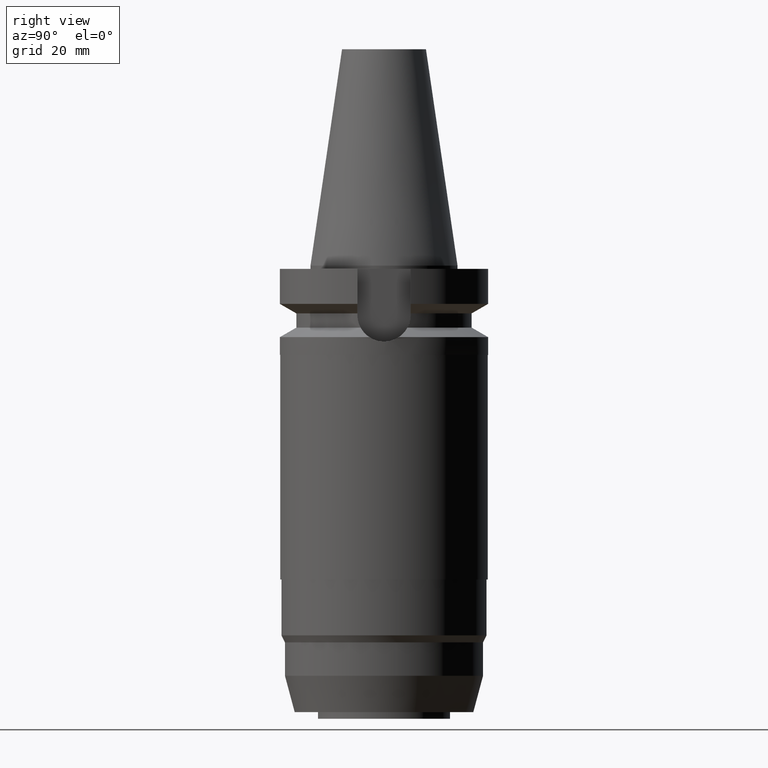
[diagram: clean part render]
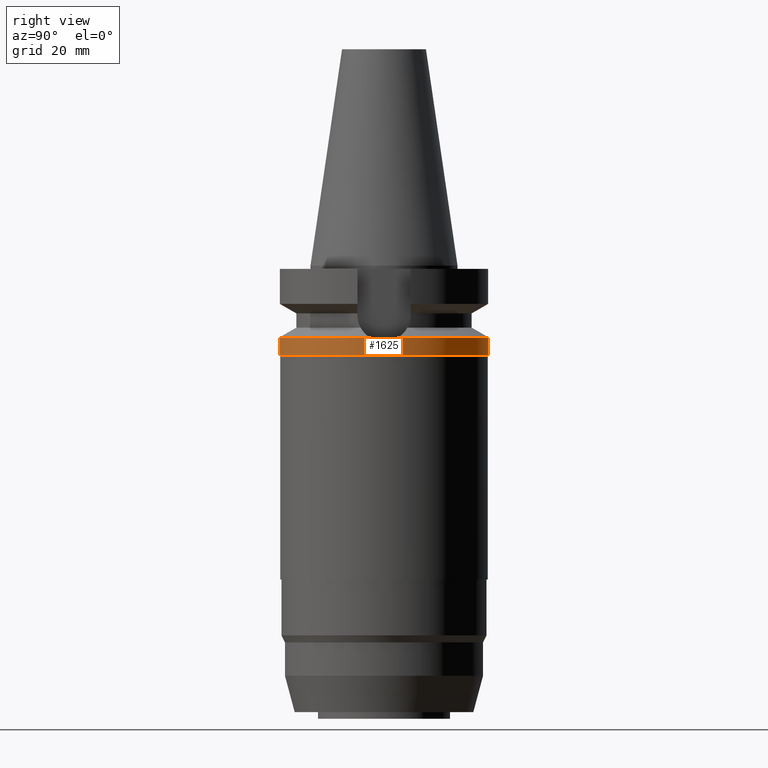
[diagram: same view with one face highlighted and labeled with its STEP entity id]
A machine part, right view. The second image highlights one B-rep face of the part: STEP entity #1625.
In plain terms, the highlighted cylindrical surface (partial cylindrical patch) has radius 31.5 mm, axis along (0, 0, -1).
Its self-contained STEP definition (entity closure, byte-faithful):
#496=CARTESIAN_POINT('',(0.E0,0.E0,-2.163449434733E1));
#497=DIRECTION('',(0.E0,0.E0,-1.E0));
#498=DIRECTION('',(9.898094849553E-1,-1.423979757319E-1,0.E0));
#499=AXIS2_PLACEMENT_3D('',#496,#497,#498);
#526=CARTESIAN_POINT('',(3.117899877609E1,-4.485536235554E0,-2.163449434733E1));
#527=CARTESIAN_POINT('',(3.124367094466E1,-4.035999466990E0,-2.193614969474E1));
#528=CARTESIAN_POINT('',(3.135871088305E1,-3.100656153045E0,-2.243541033017E1));
#529=CARTESIAN_POINT('',(3.147359468316E1,-1.571407506791E0,-2.289766633331E1));
#530=CARTESIAN_POINT('',(3.15E1,-5.303523521573E-1,-2.3E1));
#531=CARTESIAN_POINT('',(3.15E1,0.E0,-2.3E1));
#536=CARTESIAN_POINT('',(3.15E1,0.E0,-2.3E1));
#537=CARTESIAN_POINT('',(3.15E1,5.303306473167E-1,-2.3E1));
#538=CARTESIAN_POINT('',(3.147359709017E1,1.571357245403E0,-2.289767510010E1));
#539=CARTESIAN_POINT('',(3.135871433605E1,3.100626004467E0,-2.243542509817E1));
#540=CARTESIAN_POINT('',(3.124367264891E1,4.035987620711E0,-2.193615764402E1));
#541=CARTESIAN_POINT('',(3.117899877609E1,4.485536235554E0,-2.163449434733E1));
#546=DIRECTION('',(0.E0,1.099151708819E-13,-1.E0));
#547=VECTOR('',#546,5.365505652669E0);
#548=CARTESIAN_POINT('',(0.E0,3.15E1,-2.163449434733E1));
#549=LINE('',#548,#547);
#573=CARTESIAN_POINT('',(0.E0,0.E0,-2.163449434733E1));
#574=DIRECTION('',(0.E0,0.E0,-1.E0));
#575=DIRECTION('',(0.E0,1.E0,0.E0));
#576=AXIS2_PLACEMENT_3D('',#573,#574,#575);
#619=DIRECTION('',(0.E0,-1.105773104655E-13,-1.E0));
#620=VECTOR('',#619,5.365505652669E0);
#621=CARTESIAN_POINT('',(0.E0,-3.15E1,-2.163449434733E1));
#622=LINE('',#621,#620);
#626=CARTESIAN_POINT('',(0.E0,2.149500061863E-14,-2.7E1));
#627=DIRECTION('',(0.E0,0.E0,1.E0));
#628=DIRECTION('',(0.E0,-1.E0,0.E0));
#629=AXIS2_PLACEMENT_3D('',#626,#627,#628);
#1144=CARTESIAN_POINT('',(0.E0,-3.15E1,-2.7E1));
#1145=CARTESIAN_POINT('',(0.E0,3.15E1,-2.7E1));
#1146=VERTEX_POINT('',#1144);
#1147=VERTEX_POINT('',#1145);
#1148=VERTEX_POINT('',#536);
#1149=VERTEX_POINT('',#541);
#1150=VERTEX_POINT('',#526);
#1151=CARTESIAN_POINT('',(0.E0,3.15E1,-2.163449434733E1));
#1152=VERTEX_POINT('',#1151);
#1153=CARTESIAN_POINT('',(0.E0,-3.15E1,-2.163449434733E1));
#1154=VERTEX_POINT('',#1153);
#1607=CARTESIAN_POINT('',(0.E0,2.149500061863E-14,7.552E1));
#1608=DIRECTION('',(0.E0,0.E0,-1.E0));
#1609=DIRECTION('',(0.E0,-1.E0,0.E0));
#1610=AXIS2_PLACEMENT_3D('',#1607,#1608,#1609);
#1611=CYLINDRICAL_SURFACE('',#1610,3.15E1);
#1612=ORIENTED_EDGE('',*,*,#1593,.T.);
#1613=ORIENTED_EDGE('',*,*,#1591,.T.);
#1615=ORIENTED_EDGE('',*,*,#1614,.F.);
#1617=ORIENTED_EDGE('',*,*,#1616,.T.);
#1619=ORIENTED_EDGE('',*,*,#1618,.F.);
#1621=ORIENTED_EDGE('',*,*,#1620,.F.);
#1622=ORIENTED_EDGE('',*,*,#1579,.F.);
#1623=EDGE_LOOP('',(#1612,#1613,#1615,#1617,#1619,#1621,#1622));
#1624=FACE_OUTER_BOUND('',#1623,.F.);
#500=CIRCLE('',#499,3.15E1);
#532=B_SPLINE_CURVE_WITH_KNOTS('',3,(#526,#527,#528,#529,#530,#531),
.UNSPECIFIED.,.F.,.F.,(4,1,1,4),(0.E0,3.333333333333E-1,6.666666666667E-1,1.E0),
.UNSPECIFIED.);
#542=B_SPLINE_CURVE_WITH_KNOTS('',3,(#536,#537,#538,#539,#540,#541),
.UNSPECIFIED.,.F.,.F.,(4,1,1,4),(0.E0,3.333333333333E-1,6.666666666667E-1,1.E0),
.UNSPECIFIED.);
#577=CIRCLE('',#576,3.15E1);
#630=CIRCLE('',#629,3.15E1);
#1579=EDGE_CURVE('',#1150,#1154,#500,.T.);
#1591=EDGE_CURVE('',#1148,#1149,#542,.T.);
#1593=EDGE_CURVE('',#1150,#1148,#532,.T.);
#1614=EDGE_CURVE('',#1152,#1149,#577,.T.);
#1616=EDGE_CURVE('',#1152,#1147,#549,.T.);
#1618=EDGE_CURVE('',#1146,#1147,#630,.T.);
#1620=EDGE_CURVE('',#1154,#1146,#622,.T.);
#1625=ADVANCED_FACE('',(#1624),#1611,.T.);